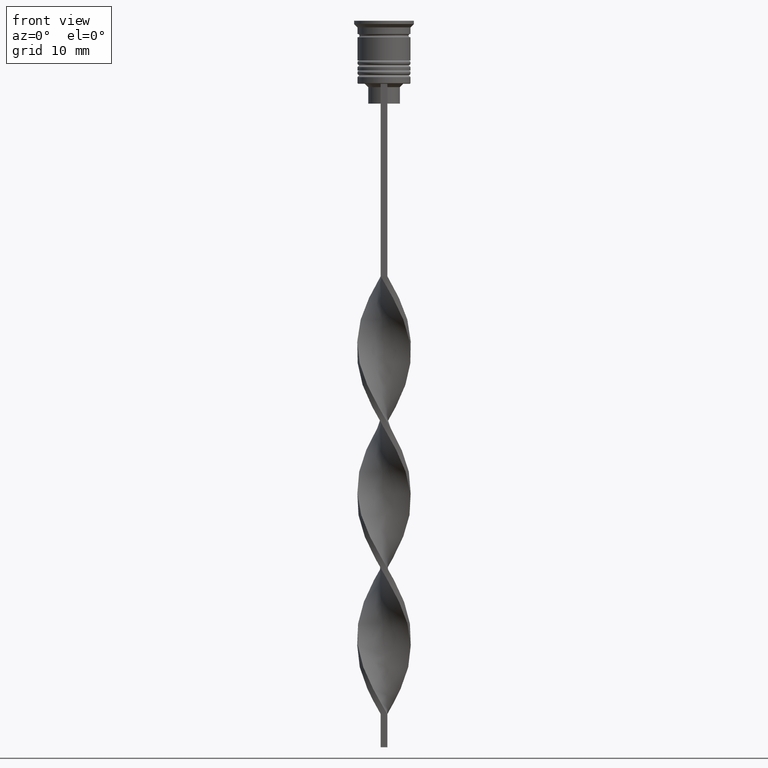
[diagram: clean part render]
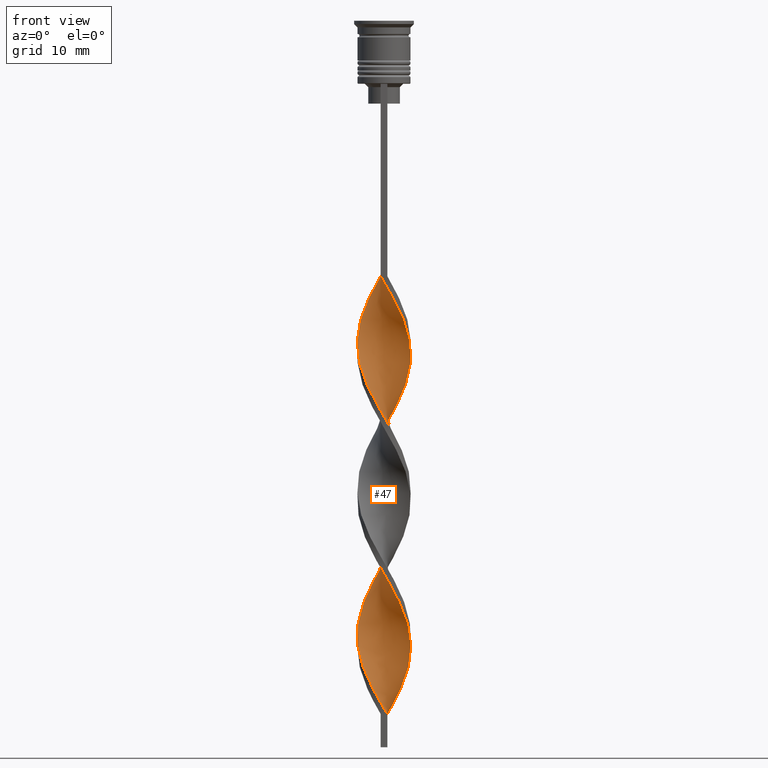
[diagram: same view with one face highlighted and labeled with its STEP entity id]
A machine part, front view. The second image highlights one B-rep face of the part: STEP entity #47.
In plain terms, the highlighted face is a freeform B-spline surface patch.
Its self-contained STEP definition (entity closure, byte-faithful):
#6 = CARTESIAN_POINT ( 'NONE',  ( 1.874433786711570349, -3.602232165184604096, -86.73076923076922640 ) ) ;
#20 = CARTESIAN_POINT ( 'NONE',  ( 0.4999999999999994449, -4.000000000000000000, -104.5000000000000142 ) ) ;
#21 = CARTESIAN_POINT ( 'NONE',  ( 3.791755605066377655, -1.453329977707797260, -91.80769230769230660 ) ) ;
#31 = CARTESIAN_POINT ( 'NONE',  ( 4.031103836519878136, -0.01420771602773549663, -50.34615384615384670 ) ) ;
#35 = CARTESIAN_POINT ( 'NONE',  ( 0.4999999999999997780, -1.333333333333333481, -104.5000000000000142 ) ) ;
#47 = ADVANCED_FACE ( 'NONE', ( #3323 ), #2980, .T. ) ;
#54 = CARTESIAN_POINT ( 'NONE',  ( 3.333769449374405003, -2.318525361317902878, -90.11538461538462741 ) ) ;
#57 = CARTESIAN_POINT ( 'NONE',  ( 3.917367414262926673, -0.9509114268274362347, -68.96153846153846700 ) ) ;
#76 = CARTESIAN_POINT ( 'NONE',  ( 3.007903090209048891, 2.683750919871450868, -75.73076923076924061 ) ) ;
#78 = CARTESIAN_POINT ( 'NONE',  ( 3.026746007048730647, -2.662481663564007839, -65.57692307692308020 ) ) ;
#95 = CARTESIAN_POINT ( 'NONE',  ( -0.9578955639853689030, -3.946139212084843972, -57.96153846153846700 ) ) ;
#110 = CARTESIAN_POINT ( 'NONE',  ( -0.4717917484372037285, 4.003425101847986944, -62.19230769230769340 ) ) ;
#153 = CARTESIAN_POINT ( 'NONE',  ( 3.333769449374406335, 2.318525361317901101, -74.88461538461538680 ) ) ;
#154 = CARTESIAN_POINT ( 'NONE',  ( -4.032828965577023972, 0.4752569063773721680, -91.80769230769230660 ) ) ;
#195 = CARTESIAN_POINT ( 'NONE',  ( -3.910567156264554534, -0.9785011580703186773, -50.34615384615384670 ) ) ;
#205 = CARTESIAN_POINT ( 'NONE',  ( 3.917367414262927561, 0.9509114268274344584, -52.03846153846154010 ) ) ;
#221 = CARTESIAN_POINT ( 'NONE',  ( -1.416164675348468904, 3.774185688634723590, -63.88461538461538680 ) ) ;
#232 = CARTESIAN_POINT ( 'NONE',  ( -2.682036731043690558, -3.048976478424999303, -54.57692307692308731 ) ) ;
#239 = CARTESIAN_POINT ( 'NONE',  ( -4.029378707462731413, 0.5036723384328422037, -71.50000000000000000 ) ) ;
#259 = CARTESIAN_POINT ( 'NONE',  ( -4.029378707462731413, 0.5036723384328422037, -71.50000000000001421 ) ) ;
#275 = CARTESIAN_POINT ( 'NONE',  ( -2.301620701001678704, 3.309462516590955250, -41.88461538461537970 ) ) ;
#276 = CARTESIAN_POINT ( 'NONE',  ( 3.801905862948830261, 1.426565947277498081, -96.88461538461538680 ) ) ;
#303 = CARTESIAN_POINT ( 'NONE',  ( 1.874433786711570571, -3.602232165184604096, -86.73076923076922640 ) ) ;
#304 = CARTESIAN_POINT ( 'NONE',  ( 3.007903090209047559, -2.683750919871451757, -89.26923076923077360 ) ) ;
#319 = CARTESIAN_POINT ( 'NONE',  ( -3.007903090209048003, -2.683750919871450868, -97.73076923076922640 ) ) ;
#321 = CARTESIAN_POINT ( 'NONE',  ( -1.899779198837471705, 3.588929866731989549, -41.03846153846154010 ) ) ;
#338 = CARTESIAN_POINT ( 'NONE',  ( 2.301620701001679148, 3.309462516590954806, -101.1153846153846132 ) ) ;
#339 = CARTESIAN_POINT ( 'NONE',  ( 3.350029810931575813, -2.294968160678093394, -66.42307692307693401 ) ) ;
#360 = CARTESIAN_POINT ( 'NONE',  ( 3.910567156264555422, 0.9785011580703162348, -72.34615384615383959 ) ) ;
#361 = CARTESIAN_POINT ( 'NONE',  ( 2.682036731043692779, 3.048976478424997527, -76.57692307692306599 ) ) ;
#382 = CARTESIAN_POINT ( 'NONE',  ( -3.910567156264554534, -0.9785011580703186773, -50.34615384615384670 ) ) ;
#384 = VERTEX_POINT ( 'NONE', #2677 ) ;
#399 = CARTESIAN_POINT ( 'NONE',  ( -4.032828965577023972, 0.4752569063773721680, -47.80769230769230660 ) ) ;
#403 = EDGE_CURVE ( 'NONE', #1261, #439, #1971, .T. ) ;
#418 = CARTESIAN_POINT ( 'NONE',  ( 0.4999999999999994449, -4.000000000000000000, -104.5000000000000142 ) ) ;
#435 = CARTESIAN_POINT ( 'NONE',  ( -4.031103836519878136, -0.01420771602773408804, -92.65384615384616041 ) ) ;
#439 = VERTEX_POINT ( 'NONE', #538 ) ;
#440 = CARTESIAN_POINT ( 'NONE',  ( 3.801905862948830261, 1.426565947277498081, -52.88461538461538680 ) ) ;
#457 = CARTESIAN_POINT ( 'NONE',  ( -2.703462203165886812, -3.029995166449921840, -78.26923076923075939 ) ) ;
#459 = CARTESIAN_POINT ( 'NONE',  ( 4.029378707462731413, -0.5036723384328416486, -49.50000000000000000 ) ) ;
#479 = CARTESIAN_POINT ( 'NONE',  ( 0.9578955639853675708, -3.946139212084843972, -41.03846153846154010 ) ) ;
#491 = CARTESIAN_POINT ( 'NONE',  ( -0.4717917484372064485, -4.003425101847986056, -58.80769230769231370 ) ) ;
#492 = CARTESIAN_POINT ( 'NONE',  ( -0.9578955639853687920, -3.946139212084844416, -101.9615384615384670 ) ) ;
#493 = EDGE_CURVE ( 'NONE', #384, #1824, #1607, .T. ) ;
#499 = CARTESIAN_POINT ( 'NONE',  ( 0.01431206711095876771, 4.060710991611130360, -61.34615384615383249 ) ) ;
#505 = CARTESIAN_POINT ( 'NONE',  ( -2.301620701001678704, 3.309462516590955250, -85.88461538461538680 ) ) ;
#511 = CARTESIAN_POINT ( 'NONE',  ( 0.9856879328890411074, -3.939289008388870084, -61.34615384615383959 ) ) ;
#517 = CARTESIAN_POINT ( 'NONE',  ( 4.029378707462731413, -0.5036723384328416486, -93.50000000000000000 ) ) ;
#530 = CARTESIAN_POINT ( 'NONE',  ( 3.026746007048730647, -2.662481663564007839, -65.57692307692308020 ) ) ;
#538 = CARTESIAN_POINT ( 'NONE',  ( 0.5000000000000005551, 4.000000000000000000, -104.5000000000000142 ) ) ;
#556 = CARTESIAN_POINT ( 'NONE',  ( -0.9856879328890421066, 3.939289008388870084, -39.34615384615384670 ) ) ;
#557 = CARTESIAN_POINT ( 'NONE',  ( -3.917367414262926673, 0.9509114268274357906, -90.96153846153845279 ) ) ;
#559 = CARTESIAN_POINT ( 'NONE',  ( 4.031103836519878136, -0.01420771602773549663, -94.34615384615385381 ) ) ;
#572 = CARTESIAN_POINT ( 'NONE',  ( 3.910567156264554534, -0.9785011580703200096, -92.65384615384616041 ) ) ;
#584 = CARTESIAN_POINT ( 'NONE',  ( -0.5000000000000000000, -4.000000000000000000, -82.50000000000000000 ) ) ;
#604 = CARTESIAN_POINT ( 'NONE',  ( 2.682036731043689670, -3.048976478425000636, -88.42307692307693401 ) ) ;
#606 = CARTESIAN_POINT ( 'NONE',  ( -3.026746007048731091, 2.662481663564006951, -43.57692307692307310 ) ) ;
#623 = CARTESIAN_POINT ( 'NONE',  ( 3.801905862948830261, 1.426565947277498081, -96.88461538461538680 ) ) ;
#624 = CARTESIAN_POINT ( 'NONE',  ( -1.874433786711570793, -3.602232165184603652, -56.26923076923076650 ) ) ;
#636 = CARTESIAN_POINT ( 'NONE',  ( 1.899779198837473038, 3.588929866731988216, -57.96153846153846700 ) ) ;
#637 = CARTESIAN_POINT ( 'NONE',  ( -0.5000000000000000000, -4.000000000000000000, -38.50000000000000000 ) ) ;
#641 = CARTESIAN_POINT ( 'NONE',  ( 1.442733565863255851, -3.764109437560429594, -62.19230769230769340 ) ) ;
#679 = CARTESIAN_POINT ( 'NONE',  ( -3.801905862948830706, 1.426565947277498525, -46.11538461538462030 ) ) ;
#692 = CARTESIAN_POINT ( 'NONE',  ( -4.032828965577023972, 0.4752569063773721680, -47.80769230769230660 ) ) ;
#699 = CARTESIAN_POINT ( 'NONE',  ( -3.007903090209047559, 2.683750919871451757, -67.26923076923077360 ) ) ;
#709 = CARTESIAN_POINT ( 'NONE',  ( 4.029378707462731413, 0.5036723384328406494, -71.50000000000000000 ) ) ;
#720 = CARTESIAN_POINT ( 'NONE',  ( 2.278235258877630010, -3.325604321804802588, -43.57692307692307310 ) ) ;
#735 = CARTESIAN_POINT ( 'NONE',  ( -1.874433786711570793, -3.602232165184603652, -100.2692307692307878 ) ) ;
#740 = CARTESIAN_POINT ( 'NONE',  ( 0.9578955639853675708, -3.946139212084844416, -85.03846153846153300 ) ) ;
#773 = CARTESIAN_POINT ( 'NONE',  ( -0.9578955639853689030, -3.946139212084843972, -101.9615384615384670 ) ) ;
#778 = CARTESIAN_POINT ( 'NONE',  ( 4.031103836519878136, -0.01420771602773549663, -50.34615384615384670 ) ) ;
#791 = CARTESIAN_POINT ( 'NONE',  ( 0.01431206711095605461, -4.060710991611130360, -59.65384615384615330 ) ) ;
#820 = CARTESIAN_POINT ( 'NONE',  ( -0.5000000000000000000, -4.000000000000000000, -82.50000000000000000 ) ) ;
#822 = CARTESIAN_POINT ( 'NONE',  ( 3.575967836940204148, 1.860767053977794516, -97.73076923076922640 ) ) ;
#835 = CARTESIAN_POINT ( 'NONE',  ( -4.032828965577023972, 0.4752569063773721680, -91.80769230769230660 ) ) ;
#837 = CARTESIAN_POINT ( 'NONE',  ( -3.791755605066377655, 1.453329977707796816, -69.80769230769230660 ) ) ;
#850 = CARTESIAN_POINT ( 'NONE',  ( 0.9578955639853692361, 3.946139212084844416, -79.96153846153846700 ) ) ;
#853 = CARTESIAN_POINT ( 'NONE',  ( -3.575967836940203703, 1.860767053977795404, -89.26923076923077360 ) ) ;
#854 = CARTESIAN_POINT ( 'NONE',  ( 0.9578955639853675708, -3.946139212084843972, -85.03846153846153300 ) ) ;
#868 = CARTESIAN_POINT ( 'NONE',  ( 2.278235258877630010, -3.325604321804802588, -87.57692307692308020 ) ) ;
#870 = CARTESIAN_POINT ( 'NONE',  ( -3.791755605066377655, -1.453329977707796816, -95.19230769230769340 ) ) ;
#871 = CARTESIAN_POINT ( 'NONE',  ( 3.333769449374404559, -2.318525361317903322, -90.11538461538462741 ) ) ;
#886 = CARTESIAN_POINT ( 'NONE',  ( -3.350029810931576701, 2.294968160678092506, -88.42307692307693401 ) ) ;
#887 = CARTESIAN_POINT ( 'NONE',  ( -4.031103836519878136, -0.01420771602773408804, -48.65384615384615330 ) ) ;
#901 = CARTESIAN_POINT ( 'NONE',  ( 0.5000000000000005551, 4.000000000000000000, -60.50000000000000000 ) ) ;
#911 = CARTESIAN_POINT ( 'NONE',  ( 0.4999999999999994449, -4.000000000000000000, -60.50000000000000000 ) ) ;
#922 = CARTESIAN_POINT ( 'NONE',  ( 2.703462203165886368, 3.029995166449921840, -56.26923076923076650 ) ) ;
#927 = B_SPLINE_CURVE_WITH_KNOTS ( 'NONE', 3,
 ( #3121, #1206, #35, #1518 ),
 .UNSPECIFIED., .F., .F.,
 ( 4, 4 ),
 ( 0.000000000000000000, 1.000000000000000000 ),
 .UNSPECIFIED. ) ;
#929 = CARTESIAN_POINT ( 'NONE',  ( 1.899779198837470373, -3.588929866731989993, -63.03846153846154010 ) ) ;
#946 = CARTESIAN_POINT ( 'NONE',  ( -3.575967836940203703, 1.860767053977795404, -45.26923076923076650 ) ) ;
#965 = CARTESIAN_POINT ( 'NONE',  ( -3.917367414262926673, 0.9509114268274357906, -46.96153846153845990 ) ) ;
#967 = CARTESIAN_POINT ( 'NONE',  ( -2.682036731043691002, -3.048976478424999303, -54.57692307692308731 ) ) ;
#984 = CARTESIAN_POINT ( 'NONE',  ( -1.416164675348469792, -3.774185688634723146, -101.1153846153846132 ) ) ;
#1025 = CARTESIAN_POINT ( 'NONE',  ( 4.032828965577023084, 0.4752569063773717239, -51.19230769230768630 ) ) ;
#1037 = VECTOR ( 'NONE', #3440, 1000.000000000000000 ) ;
#1038 = CARTESIAN_POINT ( 'NONE',  ( -2.278235258877631342, -3.325604321804801256, -55.42307692307691980 ) ) ;
#1046 = CARTESIAN_POINT ( 'NONE',  ( 3.562762527220391107, -1.885927669512850402, -46.96153846153845990 ) ) ;
#1079 = CARTESIAN_POINT ( 'NONE',  ( -3.562762527220391551, -1.885927669512849070, -52.03846153846154010 ) ) ;
#1087 = CARTESIAN_POINT ( 'NONE',  ( -2.682036731043689226, 3.048976478425001524, -66.42307692307693401 ) ) ;
#1103 = CARTESIAN_POINT ( 'NONE',  ( 2.301620701001678704, -3.309462516590955250, -63.88461538461538680 ) ) ;
#1110 = CARTESIAN_POINT ( 'NONE',  ( -0.9856879328890444381, -3.939289008388870084, -81.65384615384616041 ) ) ;
#1111 = CARTESIAN_POINT ( 'NONE',  ( -2.278235258877631342, -3.325604321804801256, -99.42307692307691980 ) ) ;
#1113 = CARTESIAN_POINT ( 'NONE',  ( -1.442733565863260736, -3.764109437560427818, -80.80769230769230660 ) ) ;
#1121 = CARTESIAN_POINT ( 'NONE',  ( 4.029378707462731413, -0.5036723384328416486, -49.50000000000000000 ) ) ;
#1128 = CARTESIAN_POINT ( 'NONE',  ( 0.4717917484372050052, -4.003425101847986944, -84.19230769230769340 ) ) ;
#1160 = CARTESIAN_POINT ( 'NONE',  ( 2.278235258877630010, -3.325604321804802588, -43.57692307692307310 ) ) ;
#1173 = CARTESIAN_POINT ( 'NONE',  ( -0.9856879328890421066, 3.939289008388869640, -39.34615384615384670 ) ) ;
#1185 = CARTESIAN_POINT ( 'NONE',  ( 1.874433786711571459, 3.602232165184603652, -78.26923076923075939 ) ) ;
#1189 = CARTESIAN_POINT ( 'NONE',  ( -0.5000000000000000000, 4.000000000000000000, -38.50000000000000000 ) ) ;
#1206 = CARTESIAN_POINT ( 'NONE',  ( 0.5000000000000002220, 1.333333333333333481, -104.5000000000000142 ) ) ;
#1208 = CARTESIAN_POINT ( 'NONE',  ( -1.442733565863256961, 3.764109437560429150, -40.19230769230769340 ) ) ;
#1209 = CARTESIAN_POINT ( 'NONE',  ( 4.031103836519878136, 0.01420771602773273322, -70.65384615384614619 ) ) ;
#1229 = CARTESIAN_POINT ( 'NONE',  ( 2.278235258877631786, 3.325604321804800811, -77.42307692307693401 ) ) ;
#1244 = CARTESIAN_POINT ( 'NONE',  ( -3.350029810931576701, 2.294968160678092506, -44.42307692307691980 ) ) ;
#1245 = CARTESIAN_POINT ( 'NONE',  ( 4.032828965577023084, -0.4752569063773718350, -69.80769230769230660 ) ) ;
#1261 = VERTEX_POINT ( 'NONE', #1810 ) ;
#1283 = CARTESIAN_POINT ( 'NONE',  ( -3.910567156264554534, -0.9785011580703186773, -94.34615384615385381 ) ) ;
#1287 = CARTESIAN_POINT ( 'NONE',  ( 1.416164675348469126, -3.774185688634723590, -41.88461538461537970 ) ) ;
#1298 = CARTESIAN_POINT ( 'NONE',  ( -3.333769449374405447, -2.318525361317902878, -96.88461538461538680 ) ) ;
#1305 = CARTESIAN_POINT ( 'NONE',  ( -0.01431206711095789862, -4.060710991611130360, -39.34615384615384670 ) ) ;
#1317 = CARTESIAN_POINT ( 'NONE',  ( -3.791755605066377655, -1.453329977707796816, -51.19230769230768630 ) ) ;
#1321 = CARTESIAN_POINT ( 'NONE',  ( -3.917367414262926673, 0.9509114268274357906, -90.96153846153845279 ) ) ;
#1325 = CARTESIAN_POINT ( 'NONE',  ( -2.682036731043688782, 3.048976478425001524, -66.42307692307694822 ) ) ;
#1329 = CARTESIAN_POINT ( 'NONE',  ( 2.301620701001679148, 3.309462516590954806, -57.11538461538461320 ) ) ;
#1346 = CARTESIAN_POINT ( 'NONE',  ( 0.4717917484372050052, -4.003425101847986944, -40.19230769230769340 ) ) ;
#1362 = CARTESIAN_POINT ( 'NONE',  ( -1.874433786711570127, 3.602232165184604540, -64.73076923076922640 ) ) ;
#1375 = CARTESIAN_POINT ( 'NONE',  ( 1.442733565863255851, -3.764109437560429594, -62.19230769230769340 ) ) ;
#1383 = CARTESIAN_POINT ( 'NONE',  ( -2.301620701001681368, -3.309462516590953474, -79.11538461538461320 ) ) ;
#1403 = CARTESIAN_POINT ( 'NONE',  ( -1.416164675348468904, 3.774185688634723590, -63.88461538461538680 ) ) ;
#1404 = CARTESIAN_POINT ( 'NONE',  ( -3.026746007048732423, -2.662481663564005174, -77.42307692307693401 ) ) ;
#1419 = CARTESIAN_POINT ( 'NONE',  ( 3.026746007048731979, 2.662481663564005618, -99.42307692307691980 ) ) ;
#1421 = CARTESIAN_POINT ( 'NONE',  ( 0.5000000000000005551, 4.000000000000000000, -104.5000000000000142 ) ) ;
#1433 = CARTESIAN_POINT ( 'NONE',  ( -4.029378707462731413, -0.5036723384328412045, -93.49999999999998579 ) ) ;
#1434 = CARTESIAN_POINT ( 'NONE',  ( -3.801905862948831150, -1.426565947277496083, -74.88461538461538680 ) ) ;
#1448 = CARTESIAN_POINT ( 'NONE',  ( -3.350029810931578478, -2.294968160678088509, -76.57692307692306599 ) ) ;
#1463 = CARTESIAN_POINT ( 'NONE',  ( -2.682036731043690558, -3.048976478424999303, -98.57692307692310862 ) ) ;
#1464 = CARTESIAN_POINT ( 'NONE',  ( -0.4717917484372064485, -4.003425101847986056, -58.80769230769231370 ) ) ;
#1482 = CARTESIAN_POINT ( 'NONE',  ( 1.442733565863258516, 3.764109437560428262, -102.8076923076923208 ) ) ;
#1483 = CARTESIAN_POINT ( 'NONE',  ( 3.801905862948829373, -1.426565947277500745, -68.11538461538461320 ) ) ;
#1518 = CARTESIAN_POINT ( 'NONE',  ( 0.4999999999999994449, -4.000000000000000000, -104.5000000000000142 ) ) ;
#1520 = CARTESIAN_POINT ( 'NONE',  ( 3.791755605066378987, 1.453329977707795484, -73.19230769230769340 ) ) ;
#1535 = CARTESIAN_POINT ( 'NONE',  ( -0.9856879328890421066, 3.939289008388869640, -83.34615384615386802 ) ) ;
#1584 = CARTESIAN_POINT ( 'NONE',  ( -0.4717917484372064485, -4.003425101847986056, -102.8076923076923208 ) ) ;
#1590 = CARTESIAN_POINT ( 'NONE',  ( 3.026746007048731979, 2.662481663564005618, -55.42307692307691980 ) ) ;
#1607 =( BOUNDED_CURVE ( )  B_SPLINE_CURVE ( 2, ( #1189, #1173, #2653, #321, #3142, #2017, #606, #2035, #946, #679, #2284, #399, #887, #3175, #382, #1820, #2299, #3406, #2616, #967, #3125, #624, #1745, #95, #1464, #2596, #911, #2909, #641, #929, #1765, #2870, #78, #339, #2065, #1483, #57, #1245, #1209, #3429, #2047, #1520, #1804, #1781, #2888, #361, #1229, #2354, #2634, #2337, #3464, #2086, #2927, #1535, #1851, #3540, #2941, #2689, #3240, #2403, #2117, #2961, #1321, #154, #435, #2672, #1283, #2179, #3220, #1298, #2424, #3518, #1608, #735, #984, #773, #1584, #2103, #418 ),
 .UNSPECIFIED., .F., .T. ) 
 B_SPLINE_CURVE_WITH_KNOTS ( ( 3, 2, 2, 2, 2, 2, 2, 2, 2, 2, 2, 2, 2, 2, 2, 2, 2, 2, 2, 2, 2, 2, 2, 2, 2, 2, 2, 2, 2, 2, 2, 2, 2, 2, 2, 2, 2, 2, 2, 3 ),
 ( 0.000000000000000000, 0.01923076923076923184, 0.03846153846153846367, 0.05769230769230768857, 0.07692307692307692735, 0.09615384615384615918, 0.1153846153846153771, 0.1346153846153846090, 0.1538461538461538547, 0.1730769230769230449, 0.1923076923076923184, 0.2115384615384615363, 0.2307692307692307543, 0.2500000000000000000, 0.2692307692307692180, 0.2884615384615384359, 0.3076923076923077094, 0.3269230769230769273, 0.3461538461538460898, 0.3653846153846153633, 0.3846153846153846367, 0.4038461538461539102, 0.4230769230769230727, 0.4423076923076922906, 0.4615384615384615086, 0.4807692307692307820, 0.5000000000000000000, 0.5192307692307692735, 0.5384615384615384359, 0.5576923076923077094, 0.5769230769230768718, 0.5961538461538461453, 0.6153846153846154188, 0.6346153846153845812, 0.6538461538461538547, 0.6730769230769230171, 0.6923076923076921796, 0.7115384615384615641, 0.7307692307692307265, 0.7500000000000000000 ),
 .UNSPECIFIED. ) 
 CURVE ( )  GEOMETRIC_REPRESENTATION_ITEM ( )  RATIONAL_B_SPLINE_CURVE ( ( 1.000000000000000000, 0.9927088740980539727, 1.000000000000000000, 0.9927088740980539727, 1.000000000000000000, 0.9927088740980539727, 1.000000000000000000, 0.9927088740980539727, 1.000000000000000000, 0.9927088740980539727, 1.000000000000000000, 0.9927088740980539727, 1.000000000000000000, 0.9927088740980539727, 1.000000000000000000, 0.9927088740980539727, 1.000000000000000000, 0.9927088740980539727, 1.000000000000000000, 0.9927088740980539727, 1.000000000000000000, 0.9927088740980539727, 1.000000000000000000, 0.9927088740980539727, 1.000000000000000000, 0.9927088740980539727, 1.000000000000000000, 0.9927088740980539727, 1.000000000000000000, 0.9927088740980539727, 1.000000000000000000, 0.9927088740980539727, 1.000000000000000000, 0.9927088740980539727, 1.000000000000000000, 0.9927088740980539727, 1.000000000000000000, 0.9927088740980539727, 1.000000000000000000, 0.9927088740980539727, 1.000000000000000000, 0.9927088740980539727, 1.000000000000000000, 0.9927088740980539727, 1.000000000000000000, 0.9927088740980539727, 1.000000000000000000, 0.9927088740980539727, 1.000000000000000000, 0.9927088740980539727, 1.000000000000000000, 0.9927088740980539727, 1.000000000000000000, 0.9927088740980539727, 1.000000000000000000, 0.9927088740980539727, 1.000000000000000000, 0.9927088740980539727, 1.000000000000000000, 0.9927088740980539727, 1.000000000000000000, 0.9927088740980539727, 1.000000000000000000, 0.9927088740980539727, 1.000000000000000000, 0.9927088740980539727, 1.000000000000000000, 0.9927088740980539727, 1.000000000000000000, 0.9927088740980539727, 1.000000000000000000, 0.9927088740980539727, 1.000000000000000000, 0.9927088740980539727, 1.000000000000000000, 0.9927088740980539727, 1.000000000000000000, 0.9927088740980539727, 1.000000000000000000 ) ) 
 REPRESENTATION_ITEM ( '' )  );
#1608 = CARTESIAN_POINT ( 'NONE',  ( -2.278235258877631342, -3.325604321804801256, -99.42307692307691980 ) ) ;
#1628 = CARTESIAN_POINT ( 'NONE',  ( -3.562762527220391107, 1.885927669512850846, -68.96153846153846700 ) ) ;
#1632 = CARTESIAN_POINT ( 'NONE',  ( -0.4717917484372037285, 4.003425101847986944, -62.19230769230769340 ) ) ;
#1643 = CARTESIAN_POINT ( 'NONE',  ( -4.029378707462731413, -0.5036723384328412045, -49.50000000000000000 ) ) ;
#1648 = CARTESIAN_POINT ( 'NONE',  ( -4.031103836519877248, 0.01420771602773772055, -72.34615384615383959 ) ) ;
#1650 = CARTESIAN_POINT ( 'NONE',  ( 3.026746007048731979, 2.662481663564005618, -99.42307692307691980 ) ) ;
#1668 = CARTESIAN_POINT ( 'NONE',  ( -0.01431206711095789688, -4.060710991611130360, -39.34615384615384670 ) ) ;
#1672 = CARTESIAN_POINT ( 'NONE',  ( -0.01431206711095789862, -4.060710991611130360, -83.34615384615386802 ) ) ;
#1681 = CARTESIAN_POINT ( 'NONE',  ( -1.442733565863256961, 3.764109437560429150, -84.19230769230769340 ) ) ;
#1692 = CARTESIAN_POINT ( 'NONE',  ( -1.899779198837471705, 3.588929866731989105, -41.03846153846154010 ) ) ;
#1693 = CARTESIAN_POINT ( 'NONE',  ( -3.333769449374405447, -2.318525361317902433, -96.88461538461538680 ) ) ;
#1695 = CARTESIAN_POINT ( 'NONE',  ( 1.442733565863258516, 3.764109437560428262, -102.8076923076923208 ) ) ;
#1709 = CARTESIAN_POINT ( 'NONE',  ( 4.029378707462731413, -0.5036723384328416486, -93.49999999999998579 ) ) ;
#1710 = CARTESIAN_POINT ( 'NONE',  ( -3.575967836940204148, -1.860767053977794072, -75.73076923076924061 ) ) ;
#1723 = CARTESIAN_POINT ( 'NONE',  ( 3.007903090209047559, -2.683750919871451757, -45.26923076923076650 ) ) ;
#1726 = CARTESIAN_POINT ( 'NONE',  ( 0.9856879328890441050, 3.939289008388869640, -103.6538461538461462 ) ) ;
#1743 = CARTESIAN_POINT ( 'NONE',  ( 3.575967836940204148, 1.860767053977794516, -97.73076923076922640 ) ) ;
#1744 = CARTESIAN_POINT ( 'NONE',  ( -4.031103836519878136, -0.01420771602773408804, -92.65384615384616041 ) ) ;
#1745 = CARTESIAN_POINT ( 'NONE',  ( -1.416164675348469792, -3.774185688634723146, -57.11538461538461320 ) ) ;
#1764 = CARTESIAN_POINT ( 'NONE',  ( 3.350029810931577590, 2.294968160678091618, -98.57692307692310862 ) ) ;
#1765 = CARTESIAN_POINT ( 'NONE',  ( 2.301620701001678704, -3.309462516590955250, -63.88461538461538680 ) ) ;
#1781 = CARTESIAN_POINT ( 'NONE',  ( 3.333769449374406335, 2.318525361317901101, -74.88461538461538680 ) ) ;
#1794 = CARTESIAN_POINT ( 'NONE',  ( 3.350029810931577590, 2.294968160678091618, -54.57692307692308731 ) ) ;
#1803 = CARTESIAN_POINT ( 'NONE',  ( 4.031103836519878136, 0.01420771602773273322, -70.65384615384614619 ) ) ;
#1804 = CARTESIAN_POINT ( 'NONE',  ( 3.562762527220391551, 1.885927669512849514, -74.03846153846153300 ) ) ;
#1810 = CARTESIAN_POINT ( 'NONE',  ( -0.5000000000000000000, -4.000000000000000000, -38.50000000000000000 ) ) ;
#1813 = CARTESIAN_POINT ( 'NONE',  ( 0.9856879328890439940, 3.939289008388870084, -59.65384615384615330 ) ) ;
#1820 = CARTESIAN_POINT ( 'NONE',  ( -3.791755605066377655, -1.453329977707796816, -51.19230769230768630 ) ) ;
#1824 = VERTEX_POINT ( 'NONE', #20 ) ;
#1851 = CARTESIAN_POINT ( 'NONE',  ( -1.442733565863256961, 3.764109437560429150, -84.19230769230769340 ) ) ;
#1870 = CARTESIAN_POINT ( 'NONE',  ( 1.416164675348469126, -3.774185688634723590, -85.88461538461538680 ) ) ;
#1883 = CARTESIAN_POINT ( 'NONE',  ( -3.333769449374405447, -2.318525361317902433, -52.88461538461537970 ) ) ;
#1895 = CARTESIAN_POINT ( 'NONE',  ( -1.899779198837471705, 3.588929866731989105, -85.03846153846153300 ) ) ;
#1905 = CARTESIAN_POINT ( 'NONE',  ( -1.874433786711571015, -3.602232165184603652, -56.26923076923076650 ) ) ;
#1916 = CARTESIAN_POINT ( 'NONE',  ( 0.9856879328890441050, 3.939289008388869640, -59.65384615384615330 ) ) ;
#1967 = CARTESIAN_POINT ( 'NONE',  ( -3.910567156264554534, -0.9785011580703186773, -94.34615384615385381 ) ) ;
#1969 = CARTESIAN_POINT ( 'NONE',  ( 1.416164675348469126, -3.774185688634723590, -85.88461538461538680 ) ) ;
#1971 =( BOUNDED_CURVE ( )  B_SPLINE_CURVE ( 2, ( #3266, #1305, #1346, #479, #1287, #3524, #720, #3507, #3283, #2730, #1046, #3211, #3227, #459, #778, #1025, #205, #440, #2146, #2708, #1590, #2471, #1329, #2455, #2432, #1916, #3019, #499, #1632, #2745, #221, #1362, #3580, #1087, #699, #2948, #2832, #837, #3371, #259, #1988, #2241, #2517, #1434, #1710, #1448, #1404, #3358, #3341, #3624, #1113, #3328, #584, #1672, #1128, #854, #1969, #6, #2801, #3038, #304, #871, #3075, #2002, #2763, #517, #559, #3304, #2499, #276, #822, #3607, #1650, #2565, #2271, #2204, #1695, #1726, #1421 ),
 .UNSPECIFIED., .F., .T. ) 
 B_SPLINE_CURVE_WITH_KNOTS ( ( 3, 2, 2, 2, 2, 2, 2, 2, 2, 2, 2, 2, 2, 2, 2, 2, 2, 2, 2, 2, 2, 2, 2, 2, 2, 2, 2, 2, 2, 2, 2, 2, 2, 2, 2, 2, 2, 2, 2, 3 ),
 ( 0.000000000000000000, 0.01923076923076923184, 0.03846153846153846367, 0.05769230769230768857, 0.07692307692307692735, 0.09615384615384615918, 0.1153846153846153771, 0.1346153846153846090, 0.1538461538461538547, 0.1730769230769230449, 0.1923076923076923184, 0.2115384615384615363, 0.2307692307692307543, 0.2500000000000000000, 0.2692307692307692180, 0.2884615384615384359, 0.3076923076923077094, 0.3269230769230769273, 0.3461538461538460898, 0.3653846153846153633, 0.3846153846153846367, 0.4038461538461539102, 0.4230769230769230727, 0.4423076923076922906, 0.4615384615384615086, 0.4807692307692307820, 0.5000000000000000000, 0.5192307692307692735, 0.5384615384615384359, 0.5576923076923077094, 0.5769230769230768718, 0.5961538461538461453, 0.6153846153846154188, 0.6346153846153845812, 0.6538461538461538547, 0.6730769230769230171, 0.6923076923076921796, 0.7115384615384615641, 0.7307692307692307265, 0.7500000000000000000 ),
 .UNSPECIFIED. ) 
 CURVE ( )  GEOMETRIC_REPRESENTATION_ITEM ( )  RATIONAL_B_SPLINE_CURVE ( ( 1.000000000000000000, 0.9927088740980539727, 1.000000000000000000, 0.9927088740980539727, 1.000000000000000000, 0.9927088740980539727, 1.000000000000000000, 0.9927088740980539727, 1.000000000000000000, 0.9927088740980539727, 1.000000000000000000, 0.9927088740980539727, 1.000000000000000000, 0.9927088740980539727, 1.000000000000000000, 0.9927088740980539727, 1.000000000000000000, 0.9927088740980539727, 1.000000000000000000, 0.9927088740980539727, 1.000000000000000000, 0.9927088740980539727, 1.000000000000000000, 0.9927088740980539727, 1.000000000000000000, 0.9927088740980539727, 1.000000000000000000, 0.9927088740980539727, 1.000000000000000000, 0.9927088740980539727, 1.000000000000000000, 0.9927088740980539727, 1.000000000000000000, 0.9927088740980539727, 1.000000000000000000, 0.9927088740980539727, 1.000000000000000000, 0.9927088740980539727, 1.000000000000000000, 0.9927088740980539727, 1.000000000000000000, 0.9927088740980539727, 1.000000000000000000, 0.9927088740980539727, 1.000000000000000000, 0.9927088740980539727, 1.000000000000000000, 0.9927088740980539727, 1.000000000000000000, 0.9927088740980539727, 1.000000000000000000, 0.9927088740980539727, 1.000000000000000000, 0.9927088740980539727, 1.000000000000000000, 0.9927088740980539727, 1.000000000000000000, 0.9927088740980539727, 1.000000000000000000, 0.9927088740980539727, 1.000000000000000000, 0.9927088740980539727, 1.000000000000000000, 0.9927088740980539727, 1.000000000000000000, 0.9927088740980539727, 1.000000000000000000, 0.9927088740980539727, 1.000000000000000000, 0.9927088740980539727, 1.000000000000000000, 0.9927088740980539727, 1.000000000000000000, 0.9927088740980539727, 1.000000000000000000, 0.9927088740980539727, 1.000000000000000000, 0.9927088740980539727, 1.000000000000000000 ) ) 
 REPRESENTATION_ITEM ( '' )  );
#1988 = CARTESIAN_POINT ( 'NONE',  ( -4.031103836519877248, 0.01420771602773772055, -72.34615384615383959 ) ) ;
#2001 = CARTESIAN_POINT ( 'NONE',  ( 3.562762527220391107, -1.885927669512850402, -90.96153846153845279 ) ) ;
#2002 = CARTESIAN_POINT ( 'NONE',  ( 3.791755605066377655, -1.453329977707797260, -91.80769230769230660 ) ) ;
#2009 = CARTESIAN_POINT ( 'NONE',  ( 3.791755605066377655, -1.453329977707797260, -47.80769230769230660 ) ) ;
#2011 = CARTESIAN_POINT ( 'NONE',  ( 1.416164675348472235, 3.774185688634722702, -79.11538461538461320 ) ) ;
#2015 = EDGE_CURVE ( 'NONE', #439, #1824, #927, .T. ) ;
#2017 = CARTESIAN_POINT ( 'NONE',  ( -2.703462203165886368, 3.029995166449922284, -42.73076923076923350 ) ) ;
#2035 = CARTESIAN_POINT ( 'NONE',  ( -3.350029810931576701, 2.294968160678092506, -44.42307692307692690 ) ) ;
#2047 = CARTESIAN_POINT ( 'NONE',  ( 3.910567156264555422, 0.9785011580703162348, -72.34615384615383959 ) ) ;
#2064 = CARTESIAN_POINT ( 'NONE',  ( -2.703462203165886368, 3.029995166449922284, -42.73076923076923350 ) ) ;
#2065 = CARTESIAN_POINT ( 'NONE',  ( 3.575967836940203703, -1.860767053977795404, -67.26923076923077360 ) ) ;
#2078 = CARTESIAN_POINT ( 'NONE',  ( 1.442733565863258516, 3.764109437560428262, -58.80769230769231370 ) ) ;
#2079 = LINE ( 'NONE', #637, #1037 ) ;
#2086 = CARTESIAN_POINT ( 'NONE',  ( -0.01431206711095556715, 4.060710991611130360, -81.65384615384616041 ) ) ;
#2103 = CARTESIAN_POINT ( 'NONE',  ( 0.01431206711095605461, -4.060710991611130360, -103.6538461538461462 ) ) ;
#2115 = CARTESIAN_POINT ( 'NONE',  ( 4.032828965577023084, -0.4752569063773718350, -69.80769230769230660 ) ) ;
#2117 = CARTESIAN_POINT ( 'NONE',  ( -3.575967836940203703, 1.860767053977795404, -89.26923076923077360 ) ) ;
#2137 = CARTESIAN_POINT ( 'NONE',  ( 3.801905862948829373, -1.426565947277500745, -68.11538461538462741 ) ) ;
#2146 = CARTESIAN_POINT ( 'NONE',  ( 3.575967836940204148, 1.860767053977794516, -53.73076923076923350 ) ) ;
#2157 = CARTESIAN_POINT ( 'NONE',  ( -1.416164675348469792, -3.774185688634723146, -57.11538461538461320 ) ) ;
#2165 = CARTESIAN_POINT ( 'NONE',  ( -3.007903090209047559, 2.683750919871451757, -67.26923076923077360 ) ) ;
#2179 = CARTESIAN_POINT ( 'NONE',  ( -3.791755605066377655, -1.453329977707796816, -95.19230769230769340 ) ) ;
#2188 = CARTESIAN_POINT ( 'NONE',  ( -0.9856879328890421066, 3.939289008388870084, -83.34615384615386802 ) ) ;
#2204 = CARTESIAN_POINT ( 'NONE',  ( 1.899779198837473038, 3.588929866731988660, -101.9615384615384670 ) ) ;
#2217 = CARTESIAN_POINT ( 'NONE',  ( 4.032828965577023084, 0.4752569063773717239, -51.19230769230768630 ) ) ;
#2239 = CARTESIAN_POINT ( 'NONE',  ( -3.801905862948830706, 1.426565947277498525, -90.11538461538462741 ) ) ;
#2241 = CARTESIAN_POINT ( 'NONE',  ( -4.032828965577023972, -0.4752569063773701696, -73.19230769230769340 ) ) ;
#2254 = CARTESIAN_POINT ( 'NONE',  ( 0.9578955639853675708, -3.946139212084844416, -41.03846153846154010 ) ) ;
#2265 = ORIENTED_EDGE ( 'NONE', *, *, #3408, .T. ) ;
#2271 = CARTESIAN_POINT ( 'NONE',  ( 2.301620701001679148, 3.309462516590954806, -101.1153846153846132 ) ) ;
#2280 = CARTESIAN_POINT ( 'NONE',  ( 2.278235258877631786, 3.325604321804800811, -77.42307692307693401 ) ) ;
#2284 = CARTESIAN_POINT ( 'NONE',  ( -3.917367414262926673, 0.9509114268274357906, -46.96153846153845990 ) ) ;
#2299 = CARTESIAN_POINT ( 'NONE',  ( -3.562762527220391551, -1.885927669512849070, -52.03846153846154010 ) ) ;
#2337 = CARTESIAN_POINT ( 'NONE',  ( 0.9578955639853693471, 3.946139212084843972, -79.96153846153846700 ) ) ;
#2349 = CARTESIAN_POINT ( 'NONE',  ( 2.301620701001679148, 3.309462516590954806, -57.11538461538461320 ) ) ;
#2353 = CARTESIAN_POINT ( 'NONE',  ( -3.801905862948830706, 1.426565947277498525, -46.11538461538462741 ) ) ;
#2354 = CARTESIAN_POINT ( 'NONE',  ( 1.874433786711571237, 3.602232165184603652, -78.26923076923077360 ) ) ;
#2363 = ORIENTED_EDGE ( 'NONE', *, *, #493, .T. ) ;
#2389 = CARTESIAN_POINT ( 'NONE',  ( -3.026746007048731091, 2.662481663564006951, -43.57692307692307310 ) ) ;
#2402 = CARTESIAN_POINT ( 'NONE',  ( -3.007903090209048003, -2.683750919871450868, -53.73076923076923350 ) ) ;
#2403 = CARTESIAN_POINT ( 'NONE',  ( -3.350029810931576701, 2.294968160678092506, -88.42307692307691980 ) ) ;
#2423 = CARTESIAN_POINT ( 'NONE',  ( 0.4999999999999994449, -4.000000000000000000, -104.5000000000000142 ) ) ;
#2424 = CARTESIAN_POINT ( 'NONE',  ( -3.007903090209048003, -2.683750919871450868, -97.73076923076922640 ) ) ;
#2428 = CARTESIAN_POINT ( 'NONE',  ( -3.801905862948831150, -1.426565947277496083, -74.88461538461538680 ) ) ;
#2432 = CARTESIAN_POINT ( 'NONE',  ( 1.442733565863258516, 3.764109437560428262, -58.80769230769231370 ) ) ;
#2452 = CARTESIAN_POINT ( 'NONE',  ( -3.910567156264554534, 0.9785011580703212308, -70.65384615384614619 ) ) ;
#2455 = CARTESIAN_POINT ( 'NONE',  ( 1.899779198837473038, 3.588929866731988660, -57.96153846153846700 ) ) ;
#2470 = CARTESIAN_POINT ( 'NONE',  ( -3.791755605066377655, 1.453329977707796816, -69.80769230769230660 ) ) ;
#2471 = CARTESIAN_POINT ( 'NONE',  ( 2.703462203165886368, 3.029995166449921840, -56.26923076923076650 ) ) ;
#2478 = CARTESIAN_POINT ( 'NONE',  ( -0.5000000000000000000, 4.000000000000000000, -82.50000000000000000 ) ) ;
#2497 = CARTESIAN_POINT ( 'NONE',  ( -3.575967836940204148, -1.860767053977794072, -75.73076923076924061 ) ) ;
#2499 = CARTESIAN_POINT ( 'NONE',  ( 3.917367414262927561, 0.9509114268274344584, -96.03846153846154721 ) ) ;
#2517 = CARTESIAN_POINT ( 'NONE',  ( -3.917367414262927561, -0.9509114268274349024, -74.03846153846153300 ) ) ;
#2527 = CARTESIAN_POINT ( 'NONE',  ( -0.5000000000000000000, -4.000000000000000000, -38.50000000000000000 ) ) ;
#2543 = CARTESIAN_POINT ( 'NONE',  ( 1.874433786711570571, -3.602232165184604096, -42.73076923076923350 ) ) ;
#2544 = CARTESIAN_POINT ( 'NONE',  ( 0.9856879328890439940, 3.939289008388870084, -103.6538461538461604 ) ) ;
#2565 = CARTESIAN_POINT ( 'NONE',  ( 2.703462203165886368, 3.029995166449921840, -100.2692307692307878 ) ) ;
#2576 = CARTESIAN_POINT ( 'NONE',  ( 2.682036731043692335, 3.048976478424997527, -76.57692307692306599 ) ) ;
#2593 = CARTESIAN_POINT ( 'NONE',  ( -0.5000000000000000000, 4.000000000000000000, -38.50000000000000000 ) ) ;
#2596 = CARTESIAN_POINT ( 'NONE',  ( 0.01431206711095605461, -4.060710991611130360, -59.65384615384615330 ) ) ;
#2616 = CARTESIAN_POINT ( 'NONE',  ( -3.007903090209048003, -2.683750919871450868, -53.73076923076923350 ) ) ;
#2634 = CARTESIAN_POINT ( 'NONE',  ( 1.416164675348472235, 3.774185688634722702, -79.11538461538461320 ) ) ;
#2653 = CARTESIAN_POINT ( 'NONE',  ( -1.442733565863256961, 3.764109437560429150, -40.19230769230769340 ) ) ;
#2672 = CARTESIAN_POINT ( 'NONE',  ( -4.029378707462731413, -0.5036723384328412045, -93.50000000000000000 ) ) ;
#2677 = CARTESIAN_POINT ( 'NONE',  ( -0.5000000000000000000, 4.000000000000000000, -38.50000000000000000 ) ) ;
#2688 = CARTESIAN_POINT ( 'NONE',  ( 3.562762527220391551, 1.885927669512849514, -74.03846153846153300 ) ) ;
#2689 = CARTESIAN_POINT ( 'NONE',  ( -2.703462203165886368, 3.029995166449922284, -86.73076923076922640 ) ) ;
#2708 = CARTESIAN_POINT ( 'NONE',  ( 3.350029810931577590, 2.294968160678091174, -54.57692307692308731 ) ) ;
#2728 = CARTESIAN_POINT ( 'NONE',  ( -3.333769449374404559, 2.318525361317904654, -68.11538461538462741 ) ) ;
#2730 = CARTESIAN_POINT ( 'NONE',  ( 3.333769449374404559, -2.318525361317903322, -46.11538461538462030 ) ) ;
#2744 = CARTESIAN_POINT ( 'NONE',  ( -3.917367414262927561, -0.9509114268274349024, -74.03846153846153300 ) ) ;
#2745 = CARTESIAN_POINT ( 'NONE',  ( -0.9578955639853662385, 3.946139212084843972, -63.03846153846154010 ) ) ;
#2752 = CARTESIAN_POINT ( 'NONE',  ( -2.703462203165886368, 3.029995166449922284, -86.73076923076922640 ) ) ;
#2763 = CARTESIAN_POINT ( 'NONE',  ( 3.910567156264554534, -0.9785011580703200096, -92.65384615384616041 ) ) ;
#2776 = CARTESIAN_POINT ( 'NONE',  ( 3.350029810931575813, -2.294968160678093394, -66.42307692307694822 ) ) ;
#2777 = CARTESIAN_POINT ( 'NONE',  ( -1.416164675348469792, -3.774185688634723146, -101.1153846153846132 ) ) ;
#2783 = CARTESIAN_POINT ( 'NONE',  ( 0.4717917484372050052, -4.003425101847986944, -84.19230769230769340 ) ) ;
#2801 = CARTESIAN_POINT ( 'NONE',  ( 2.278235258877630010, -3.325604321804802588, -87.57692307692308020 ) ) ;
#2812 = CARTESIAN_POINT ( 'NONE',  ( 1.899779198837473038, 3.588929866731988216, -101.9615384615384670 ) ) ;
#2831 = CARTESIAN_POINT ( 'NONE',  ( -3.562762527220391551, -1.885927669512849070, -96.03846153846154721 ) ) ;
#2832 = CARTESIAN_POINT ( 'NONE',  ( -3.562762527220391107, 1.885927669512850846, -68.96153846153846700 ) ) ;
#2844 = CARTESIAN_POINT ( 'NONE',  ( 3.910567156264554534, -0.9785011580703200096, -48.65384615384615330 ) ) ;
#2847 = CARTESIAN_POINT ( 'NONE',  ( -0.01431206711095556715, 4.060710991611130360, -81.65384615384616041 ) ) ;
#2869 = CARTESIAN_POINT ( 'NONE',  ( 2.703462203165886368, 3.029995166449921840, -100.2692307692307878 ) ) ;
#2870 = CARTESIAN_POINT ( 'NONE',  ( 2.703462203165885924, -3.029995166449922728, -64.73076923076922640 ) ) ;
#2888 = CARTESIAN_POINT ( 'NONE',  ( 3.007903090209048891, 2.683750919871450868, -75.73076923076924061 ) ) ;
#2909 = CARTESIAN_POINT ( 'NONE',  ( 0.9856879328890412184, -3.939289008388869640, -61.34615384615383249 ) ) ;
#2920 = CARTESIAN_POINT ( 'NONE',  ( 0.01431206711095876771, 4.060710991611130360, -61.34615384615383959 ) ) ;
#2927 = CARTESIAN_POINT ( 'NONE',  ( -0.5000000000000000000, 4.000000000000000000, -82.50000000000000000 ) ) ;
#2938 = CARTESIAN_POINT ( 'NONE',  ( 3.917367414262926673, -0.9509114268274362347, -68.96153846153846700 ) ) ;
#2941 = CARTESIAN_POINT ( 'NONE',  ( -2.301620701001678704, 3.309462516590955250, -85.88461538461538680 ) ) ;
#2948 = CARTESIAN_POINT ( 'NONE',  ( -3.333769449374404115, 2.318525361317905098, -68.11538461538461320 ) ) ;
#2961 = CARTESIAN_POINT ( 'NONE',  ( -3.801905862948830706, 1.426565947277498525, -90.11538461538462741 ) ) ;
#2980 =( BOUNDED_SURFACE ( )  B_SPLINE_SURFACE ( 1, 2, ( 
 ( #2527, #1668, #3072, #2254, #3088, #2543, #1160, #3370, #1723, #3114, #3380, #2009, #2844, #1121, #31, #2217, #3318, #3420, #3135, #1794, #3398, #922, #2349, #636, #2078, #1813, #901, #2920, #110, #3286, #1403, #3281, #3036, #1325, #2165, #2728, #1628, #2470, #2452, #239, #1648, #3560, #2744, #2428, #2497, #3578, #3303, #457, #1383, #3606, #3543, #1110, #820, #3055, #2783, #740, #1870, #303, #868, #604, #3089, #54, #2001, #21, #572, #1709, #3122, #3404, #3386, #623, #1743, #1764, #1419, #2869, #338, #2812, #1482, #2544, #3339 ),
 ( #2593, #556, #1208, #1692, #275, #2064, #2389, #1244, #3444, #2353, #965, #692, #3500, #1643, #195, #1317, #1079, #1883, #2402, #232, #1038, #1905, #2157, #3032, #491, #791, #2988, #511, #1375, #3596, #1103, #3050, #530, #2776, #3515, #2137, #2938, #2115, #1803, #709, #360, #3239, #2688, #153, #76, #2576, #2280, #1185, #2011, #850, #3116, #2847, #2478, #2188, #1681, #1895, #505, #2752, #3090, #886, #853, #2239, #557, #835, #1744, #1433, #1967, #870, #2831, #1693, #319, #1463, #1111, #3325, #2777, #492, #3555, #3258, #2423 ) ),
 .UNSPECIFIED., .F., .F., .F. ) 
 B_SPLINE_SURFACE_WITH_KNOTS ( ( 2, 2 ),
 ( 3, 2, 2, 2, 2, 2, 2, 2, 2, 2, 2, 2, 2, 2, 2, 2, 2, 2, 2, 2, 2, 2, 2, 2, 2, 2, 2, 2, 2, 2, 2, 2, 2, 2, 2, 2, 2, 2, 2, 3 ),
 ( 0.000000000000000000, 1.000000000000000000 ),
 ( 0.000000000000000000, 0.01923076923076923184, 0.03846153846153846367, 0.05769230769230769551, 0.07692307692307692735, 0.09615384615384615918, 0.1153846153846153910, 0.1346153846153846090, 0.1538461538461538547, 0.1730769230769230727, 0.1923076923076923184, 0.2115384615384615363, 0.2307692307692307820, 0.2500000000000000000, 0.2692307692307692180, 0.2884615384615384359, 0.3076923076923077094, 0.3269230769230769273, 0.3461538461538461453, 0.3653846153846153633, 0.3846153846153846367, 0.4038461538461538547, 0.4230769230769230727, 0.4423076923076922906, 0.4615384615384615641, 0.4807692307692307820, 0.5000000000000000000, 0.5192307692307692735, 0.5384615384615384359, 0.5576923076923077094, 0.5769230769230768718, 0.5961538461538461453, 0.6153846153846154188, 0.6346153846153845812, 0.6538461538461538547, 0.6730769230769231282, 0.6923076923076922906, 0.7115384615384615641, 0.7307692307692307265, 0.7500000000000000000 ),
 .UNSPECIFIED. ) 
 GEOMETRIC_REPRESENTATION_ITEM ( )  RATIONAL_B_SPLINE_SURFACE ( (
 ( 1.000000000000000000, 0.9927088740980539727, 1.000000000000000000, 0.9927088740980539727, 1.000000000000000000, 0.9927088740980539727, 1.000000000000000000, 0.9927088740980539727, 1.000000000000000000, 0.9927088740980539727, 1.000000000000000000, 0.9927088740980539727, 1.000000000000000000, 0.9927088740980539727, 1.000000000000000000, 0.9927088740980539727, 1.000000000000000000, 0.9927088740980539727, 1.000000000000000000, 0.9927088740980539727, 1.000000000000000000, 0.9927088740980539727, 1.000000000000000000, 0.9927088740980539727, 1.000000000000000000, 0.9927088740980539727, 1.000000000000000000, 0.9927088740980539727, 1.000000000000000000, 0.9927088740980539727, 1.000000000000000000, 0.9927088740980539727, 1.000000000000000000, 0.9927088740980539727, 1.000000000000000000, 0.9927088740980539727, 1.000000000000000000, 0.9927088740980539727, 1.000000000000000000, 0.9927088740980539727, 1.000000000000000000, 0.9927088740980539727, 1.000000000000000000, 0.9927088740980539727, 1.000000000000000000, 0.9927088740980539727, 1.000000000000000000, 0.9927088740980539727, 1.000000000000000000, 0.9927088740980539727, 1.000000000000000000, 0.9927088740980539727, 1.000000000000000000, 0.9927088740980539727, 1.000000000000000000, 0.9927088740980539727, 1.000000000000000000, 0.9927088740980539727, 1.000000000000000000, 0.9927088740980539727, 1.000000000000000000, 0.9927088740980539727, 1.000000000000000000, 0.9927088740980539727, 1.000000000000000000, 0.9927088740980539727, 1.000000000000000000, 0.9927088740980539727, 1.000000000000000000, 0.9927088740980539727, 1.000000000000000000, 0.9927088740980539727, 1.000000000000000000, 0.9927088740980539727, 1.000000000000000000, 0.9927088740980539727, 1.000000000000000000, 0.9927088740980539727, 1.000000000000000000),
 ( 1.000000000000000000, 0.9927088740980539727, 1.000000000000000000, 0.9927088740980539727, 1.000000000000000000, 0.9927088740980539727, 1.000000000000000000, 0.9927088740980539727, 1.000000000000000000, 0.9927088740980539727, 1.000000000000000000, 0.9927088740980539727, 1.000000000000000000, 0.9927088740980539727, 1.000000000000000000, 0.9927088740980539727, 1.000000000000000000, 0.9927088740980539727, 1.000000000000000000, 0.9927088740980539727, 1.000000000000000000, 0.9927088740980539727, 1.000000000000000000, 0.9927088740980539727, 1.000000000000000000, 0.9927088740980539727, 1.000000000000000000, 0.9927088740980539727, 1.000000000000000000, 0.9927088740980539727, 1.000000000000000000, 0.9927088740980539727, 1.000000000000000000, 0.9927088740980539727, 1.000000000000000000, 0.9927088740980539727, 1.000000000000000000, 0.9927088740980539727, 1.000000000000000000, 0.9927088740980539727, 1.000000000000000000, 0.9927088740980539727, 1.000000000000000000, 0.9927088740980539727, 1.000000000000000000, 0.9927088740980539727, 1.000000000000000000, 0.9927088740980539727, 1.000000000000000000, 0.9927088740980539727, 1.000000000000000000, 0.9927088740980539727, 1.000000000000000000, 0.9927088740980539727, 1.000000000000000000, 0.9927088740980539727, 1.000000000000000000, 0.9927088740980539727, 1.000000000000000000, 0.9927088740980539727, 1.000000000000000000, 0.9927088740980539727, 1.000000000000000000, 0.9927088740980539727, 1.000000000000000000, 0.9927088740980539727, 1.000000000000000000, 0.9927088740980539727, 1.000000000000000000, 0.9927088740980539727, 1.000000000000000000, 0.9927088740980539727, 1.000000000000000000, 0.9927088740980539727, 1.000000000000000000, 0.9927088740980539727, 1.000000000000000000, 0.9927088740980539727, 1.000000000000000000) ) ) 
 REPRESENTATION_ITEM ( '' )  SURFACE ( )  );
#2988 = CARTESIAN_POINT ( 'NONE',  ( 0.4999999999999994449, -4.000000000000000000, -60.50000000000000000 ) ) ;
#3019 = CARTESIAN_POINT ( 'NONE',  ( 0.5000000000000005551, 4.000000000000000000, -60.50000000000000000 ) ) ;
#3032 = CARTESIAN_POINT ( 'NONE',  ( -0.9578955639853687920, -3.946139212084844416, -57.96153846153846700 ) ) ;
#3036 = CARTESIAN_POINT ( 'NONE',  ( -2.278235258877629565, 3.325604321804802588, -65.57692307692308020 ) ) ;
#3038 = CARTESIAN_POINT ( 'NONE',  ( 2.682036731043690114, -3.048976478425000636, -88.42307692307691980 ) ) ;
#3050 = CARTESIAN_POINT ( 'NONE',  ( 2.703462203165885924, -3.029995166449922728, -64.73076923076921219 ) ) ;
#3055 = CARTESIAN_POINT ( 'NONE',  ( -0.01431206711095789688, -4.060710991611130360, -83.34615384615386802 ) ) ;
#3072 = CARTESIAN_POINT ( 'NONE',  ( 0.4717917484372050052, -4.003425101847986944, -40.19230769230769340 ) ) ;
#3075 = CARTESIAN_POINT ( 'NONE',  ( 3.562762527220391107, -1.885927669512850402, -90.96153846153845279 ) ) ;
#3088 = CARTESIAN_POINT ( 'NONE',  ( 1.416164675348469126, -3.774185688634723590, -41.88461538461537970 ) ) ;
#3089 = CARTESIAN_POINT ( 'NONE',  ( 3.007903090209047559, -2.683750919871451757, -89.26923076923077360 ) ) ;
#3090 = CARTESIAN_POINT ( 'NONE',  ( -3.026746007048731091, 2.662481663564006951, -87.57692307692308020 ) ) ;
#3114 = CARTESIAN_POINT ( 'NONE',  ( 3.333769449374405003, -2.318525361317902878, -46.11538461538462741 ) ) ;
#3116 = CARTESIAN_POINT ( 'NONE',  ( 0.4717917484372087800, 4.003425101847986056, -80.80769230769230660 ) ) ;
#3121 = CARTESIAN_POINT ( 'NONE',  ( 0.5000000000000005551, 4.000000000000000000, -104.5000000000000142 ) ) ;
#3122 = CARTESIAN_POINT ( 'NONE',  ( 4.031103836519878136, -0.01420771602773549663, -94.34615384615385381 ) ) ;
#3125 = CARTESIAN_POINT ( 'NONE',  ( -2.278235258877631342, -3.325604321804801256, -55.42307692307691980 ) ) ;
#3135 = CARTESIAN_POINT ( 'NONE',  ( 3.575967836940204148, 1.860767053977794516, -53.73076923076923350 ) ) ;
#3142 = CARTESIAN_POINT ( 'NONE',  ( -2.301620701001678704, 3.309462516590955250, -41.88461538461537970 ) ) ;
#3175 = CARTESIAN_POINT ( 'NONE',  ( -4.029378707462731413, -0.5036723384328412045, -49.50000000000000000 ) ) ;
#3211 = CARTESIAN_POINT ( 'NONE',  ( 3.791755605066377655, -1.453329977707797260, -47.80769230769230660 ) ) ;
#3220 = CARTESIAN_POINT ( 'NONE',  ( -3.562762527220391551, -1.885927669512849070, -96.03846153846154721 ) ) ;
#3227 = CARTESIAN_POINT ( 'NONE',  ( 3.910567156264554534, -0.9785011580703200096, -48.65384615384615330 ) ) ;
#3239 = CARTESIAN_POINT ( 'NONE',  ( 3.791755605066378987, 1.453329977707795484, -73.19230769230770761 ) ) ;
#3240 = CARTESIAN_POINT ( 'NONE',  ( -3.026746007048731091, 2.662481663564006951, -87.57692307692308020 ) ) ;
#3258 = CARTESIAN_POINT ( 'NONE',  ( 0.01431206711095605461, -4.060710991611130360, -103.6538461538461604 ) ) ;
#3266 = CARTESIAN_POINT ( 'NONE',  ( -0.5000000000000000000, -4.000000000000000000, -38.50000000000000000 ) ) ;
#3281 = CARTESIAN_POINT ( 'NONE',  ( -1.874433786711570127, 3.602232165184604540, -64.73076923076921219 ) ) ;
#3283 = CARTESIAN_POINT ( 'NONE',  ( 3.007903090209047559, -2.683750919871451757, -45.26923076923076650 ) ) ;
#3286 = CARTESIAN_POINT ( 'NONE',  ( -0.9578955639853662385, 3.946139212084844416, -63.03846153846153300 ) ) ;
#3303 = CARTESIAN_POINT ( 'NONE',  ( -3.026746007048732423, -2.662481663564005174, -77.42307692307693401 ) ) ;
#3304 = CARTESIAN_POINT ( 'NONE',  ( 4.032828965577023084, 0.4752569063773717239, -95.19230769230769340 ) ) ;
#3318 = CARTESIAN_POINT ( 'NONE',  ( 3.917367414262927561, 0.9509114268274344584, -52.03846153846154010 ) ) ;
#3323 = FACE_OUTER_BOUND ( 'NONE', #3359, .T. ) ;
#3325 = CARTESIAN_POINT ( 'NONE',  ( -1.874433786711571015, -3.602232165184603652, -100.2692307692307878 ) ) ;
#3328 = CARTESIAN_POINT ( 'NONE',  ( -0.9856879328890445491, -3.939289008388869640, -81.65384615384616041 ) ) ;
#3339 = CARTESIAN_POINT ( 'NONE',  ( 0.5000000000000005551, 4.000000000000000000, -104.5000000000000142 ) ) ;
#3341 = CARTESIAN_POINT ( 'NONE',  ( -2.301620701001681368, -3.309462516590953474, -79.11538461538461320 ) ) ;
#3358 = CARTESIAN_POINT ( 'NONE',  ( -2.703462203165886812, -3.029995166449921840, -78.26923076923077360 ) ) ;
#3359 = EDGE_LOOP ( 'NONE', ( #2265, #2363, #3617, #3475 ) ) ;
#3370 = CARTESIAN_POINT ( 'NONE',  ( 2.682036731043689670, -3.048976478425000636, -44.42307692307691980 ) ) ;
#3371 = CARTESIAN_POINT ( 'NONE',  ( -3.910567156264554534, 0.9785011580703212308, -70.65384615384614619 ) ) ;
#3380 = CARTESIAN_POINT ( 'NONE',  ( 3.562762527220391107, -1.885927669512850402, -46.96153846153845990 ) ) ;
#3386 = CARTESIAN_POINT ( 'NONE',  ( 3.917367414262927561, 0.9509114268274344584, -96.03846153846154721 ) ) ;
#3398 = CARTESIAN_POINT ( 'NONE',  ( 3.026746007048731979, 2.662481663564005618, -55.42307692307691980 ) ) ;
#3404 = CARTESIAN_POINT ( 'NONE',  ( 4.032828965577023084, 0.4752569063773717239, -95.19230769230769340 ) ) ;
#3406 = CARTESIAN_POINT ( 'NONE',  ( -3.333769449374405447, -2.318525361317902878, -52.88461538461538680 ) ) ;
#3408 = EDGE_CURVE ( 'NONE', #1261, #384, #2079, .T. ) ;
#3420 = CARTESIAN_POINT ( 'NONE',  ( 3.801905862948830261, 1.426565947277498081, -52.88461538461537970 ) ) ;
#3429 = CARTESIAN_POINT ( 'NONE',  ( 4.029378707462731413, 0.5036723384328407604, -71.50000000000001421 ) ) ;
#3440 = DIRECTION ( 'NONE',  ( 0.000000000000000000, 1.000000000000000000, 0.000000000000000000 ) ) ;
#3444 = CARTESIAN_POINT ( 'NONE',  ( -3.575967836940203703, 1.860767053977795404, -45.26923076923076650 ) ) ;
#3464 = CARTESIAN_POINT ( 'NONE',  ( 0.4717917484372087800, 4.003425101847986056, -80.80769230769230660 ) ) ;
#3475 = ORIENTED_EDGE ( 'NONE', *, *, #403, .F. ) ;
#3500 = CARTESIAN_POINT ( 'NONE',  ( -4.031103836519878136, -0.01420771602773408804, -48.65384615384615330 ) ) ;
#3507 = CARTESIAN_POINT ( 'NONE',  ( 2.682036731043690114, -3.048976478425000636, -44.42307692307692690 ) ) ;
#3515 = CARTESIAN_POINT ( 'NONE',  ( 3.575967836940203703, -1.860767053977795404, -67.26923076923077360 ) ) ;
#3518 = CARTESIAN_POINT ( 'NONE',  ( -2.682036731043691002, -3.048976478424999303, -98.57692307692310862 ) ) ;
#3524 = CARTESIAN_POINT ( 'NONE',  ( 1.874433786711570349, -3.602232165184604096, -42.73076923076923350 ) ) ;
#3540 = CARTESIAN_POINT ( 'NONE',  ( -1.899779198837471705, 3.588929866731989549, -85.03846153846153300 ) ) ;
#3543 = CARTESIAN_POINT ( 'NONE',  ( -1.442733565863260736, -3.764109437560427818, -80.80769230769230660 ) ) ;
#3555 = CARTESIAN_POINT ( 'NONE',  ( -0.4717917484372064485, -4.003425101847986056, -102.8076923076923208 ) ) ;
#3560 = CARTESIAN_POINT ( 'NONE',  ( -4.032828965577023972, -0.4752569063773701696, -73.19230769230770761 ) ) ;
#3578 = CARTESIAN_POINT ( 'NONE',  ( -3.350029810931578478, -2.294968160678088953, -76.57692307692306599 ) ) ;
#3580 = CARTESIAN_POINT ( 'NONE',  ( -2.278235258877629565, 3.325604321804802588, -65.57692307692308020 ) ) ;
#3596 = CARTESIAN_POINT ( 'NONE',  ( 1.899779198837470373, -3.588929866731989549, -63.03846153846153300 ) ) ;
#3606 = CARTESIAN_POINT ( 'NONE',  ( -1.899779198837473482, -3.588929866731988216, -79.96153846153846700 ) ) ;
#3607 = CARTESIAN_POINT ( 'NONE',  ( 3.350029810931577590, 2.294968160678091174, -98.57692307692310862 ) ) ;
#3617 = ORIENTED_EDGE ( 'NONE', *, *, #2015, .F. ) ;
#3624 = CARTESIAN_POINT ( 'NONE',  ( -1.899779198837473482, -3.588929866731988660, -79.96153846153846700 ) ) ;